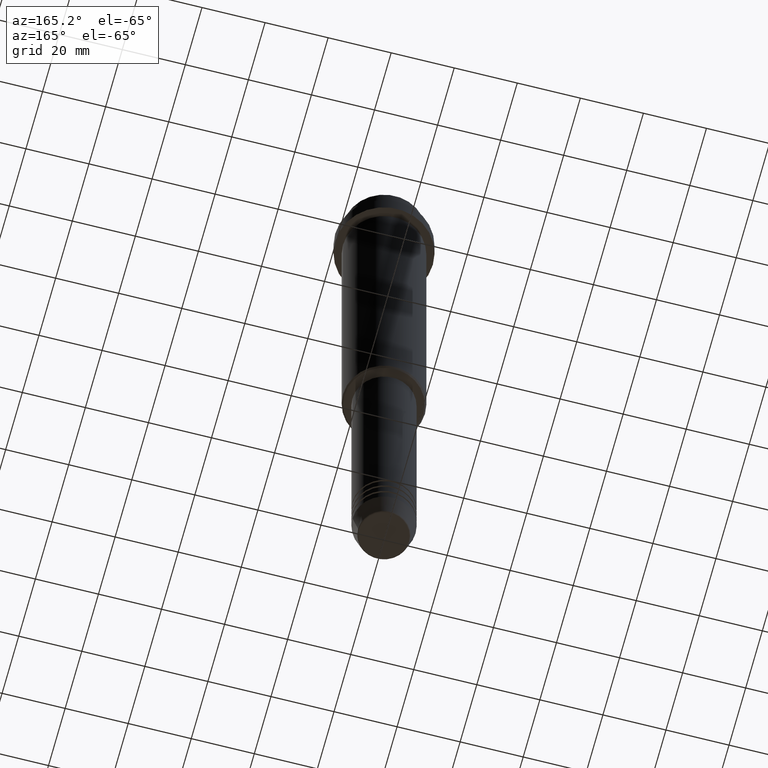
[diagram: clean part render]
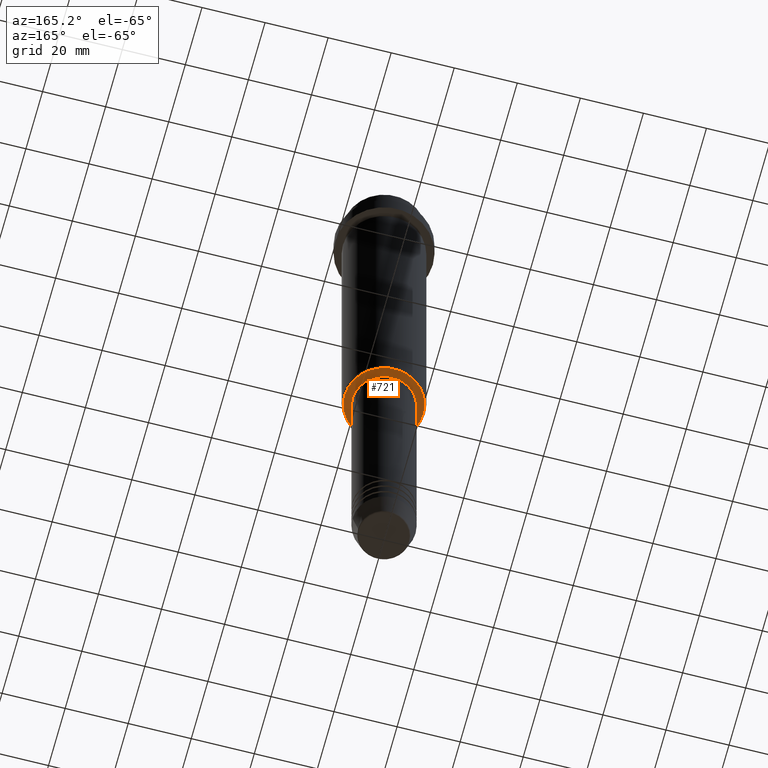
[diagram: same view with one face highlighted and labeled with its STEP entity id]
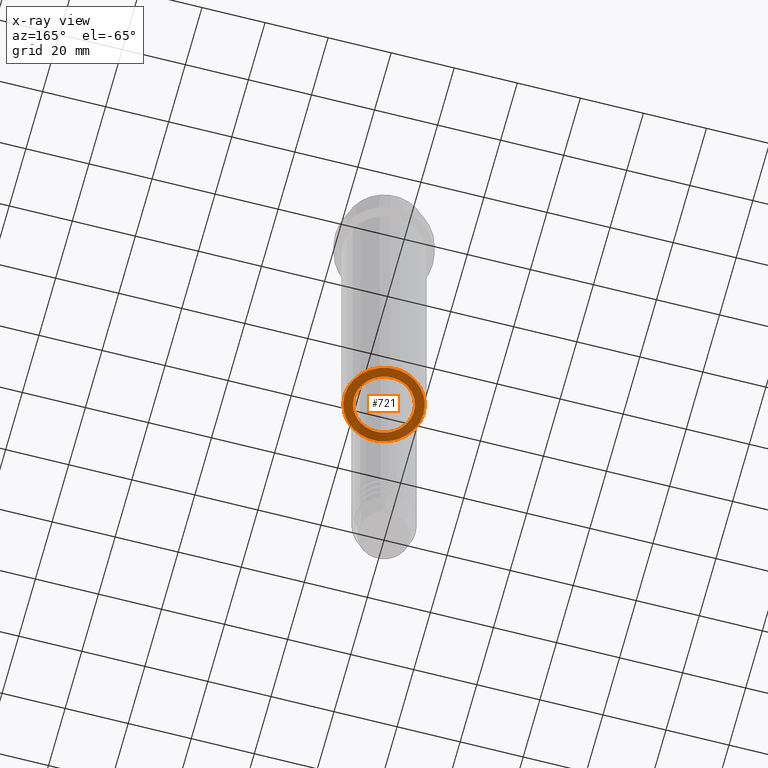
[diagram: x-ray of the same camera — body ghosted, the highlighted face saturated]
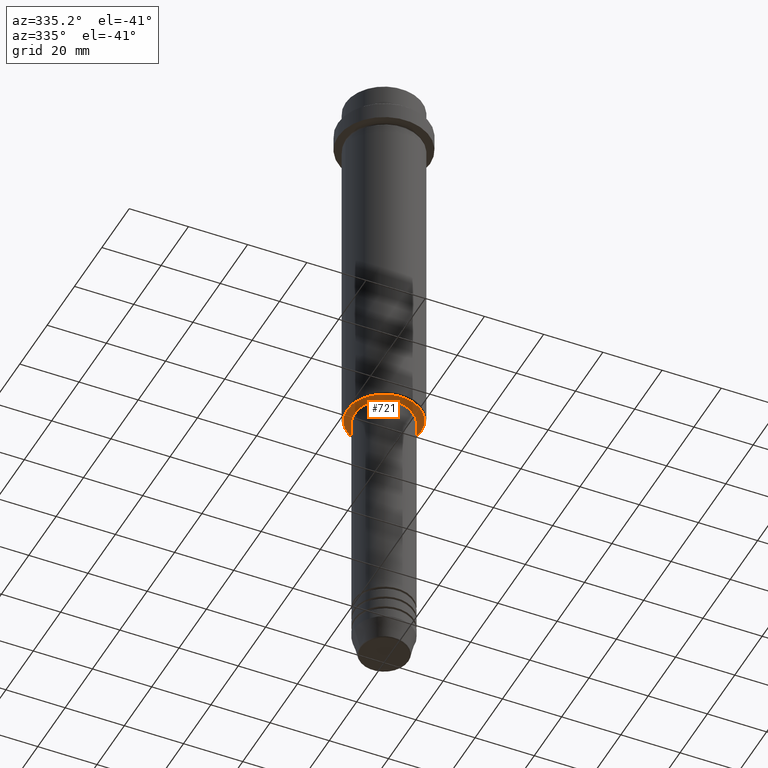
[diagram: same view with one face highlighted and labeled with its STEP entity id]
A machine part, auxiliary view. The second image highlights one B-rep face of the part: STEP entity #721.
The next image is the same camera in x-ray: the body ghosted, the highlighted face saturated — about 31% of this face is hidden behind the body in this view.
A second angle (auxiliary view) of the same face is appended — the face is thin or edge-on in the first view.
In plain terms, the highlighted planar face has unit normal (0, 0, -1).
Its self-contained STEP definition (entity closure, byte-faithful):
#46 = CARTESIAN_POINT ( 'NONE',  ( 0.000000000000000000, 0.000000000000000000, -125.0000000000000000 ) ) ;
#48 = CARTESIAN_POINT ( 'NONE',  ( 9.499999999999996447, 0.000000000000000000, -125.0000000000000000 ) ) ;
#49 = CARTESIAN_POINT ( 'NONE',  ( 0.000000000000000000, 0.000000000000000000, -125.0000000000000000 ) ) ;
#55 = AXIS2_PLACEMENT_3D ( 'NONE', #1308, #560, #892 ) ;
#191 = VERTEX_POINT ( 'NONE', #975 ) ;
#226 = AXIS2_PLACEMENT_3D ( 'NONE', #49, #351, #1037 ) ;
#232 = CIRCLE ( 'NONE', #1361, 12.49999999999995559 ) ;
#238 = FACE_OUTER_BOUND ( 'NONE', #600, .T. ) ;
#256 = EDGE_LOOP ( 'NONE', ( #591, #593 ) ) ;
#264 = CARTESIAN_POINT ( 'NONE',  ( 0.000000000000000000, 0.000000000000000000, -125.0000000000000000 ) ) ;
#291 = ORIENTED_EDGE ( 'NONE', *, *, #470, .T. ) ;
#317 = PLANE ( 'NONE',  #55 ) ;
#331 = CARTESIAN_POINT ( 'NONE',  ( 0.000000000000000000, 0.000000000000000000, -125.0000000000000000 ) ) ;
#333 = DIRECTION ( 'NONE',  ( 0.000000000000000000, 0.000000000000000000, -1.000000000000000000 ) ) ;
#337 = CIRCLE ( 'NONE', #226, 9.499999999999996447 ) ;
#351 = DIRECTION ( 'NONE',  ( -0.000000000000000000, -0.000000000000000000, 1.000000000000000000 ) ) ;
#361 = EDGE_CURVE ( 'NONE', #877, #633, #1405, .T. ) ;
#416 = EDGE_CURVE ( 'NONE', #633, #877, #337, .T. ) ;
#448 = DIRECTION ( 'NONE',  ( -0.000000000000000000, -0.000000000000000000, 1.000000000000000000 ) ) ;
#470 = EDGE_CURVE ( 'NONE', #1353, #191, #1142, .T. ) ;
#528 = AXIS2_PLACEMENT_3D ( 'NONE', #264, #1124, #723 ) ;
#560 = DIRECTION ( 'NONE',  ( 0.000000000000000000, 0.000000000000000000, -1.000000000000000000 ) ) ;
#590 = CARTESIAN_POINT ( 'NONE',  ( -12.49999999999995559, 1.561424668912872745E-15, -125.0000000000000000 ) ) ;
#591 = ORIENTED_EDGE ( 'NONE', *, *, #361, .T. ) ;
#593 = ORIENTED_EDGE ( 'NONE', *, *, #416, .T. ) ;
#600 = EDGE_LOOP ( 'NONE', ( #1157, #291 ) ) ;
#633 = VERTEX_POINT ( 'NONE', #1165 ) ;
#721 = ADVANCED_FACE ( 'NONE', ( #238, #986 ), #317, .T. ) ;
#723 = DIRECTION ( 'NONE',  ( -1.000000000000000000, 0.000000000000000000, 0.000000000000000000 ) ) ;
#782 = DIRECTION ( 'NONE',  ( -1.000000000000000000, 0.000000000000000000, 0.000000000000000000 ) ) ;
#877 = VERTEX_POINT ( 'NONE', #48 ) ;
#892 = DIRECTION ( 'NONE',  ( -1.000000000000000000, 0.000000000000000000, -0.000000000000000000 ) ) ;
#894 = DIRECTION ( 'NONE',  ( 1.000000000000000000, 0.000000000000000000, 0.000000000000000000 ) ) ;
#975 = CARTESIAN_POINT ( 'NONE',  ( 12.49999999999995559, 0.000000000000000000, -125.0000000000000000 ) ) ;
#986 = FACE_BOUND ( 'NONE', #256, .T. ) ;
#1037 = DIRECTION ( 'NONE',  ( 1.000000000000000000, 0.000000000000000000, 0.000000000000000000 ) ) ;
#1124 = DIRECTION ( 'NONE',  ( 0.000000000000000000, 0.000000000000000000, -1.000000000000000000 ) ) ;
#1142 = CIRCLE ( 'NONE', #528, 12.49999999999995559 ) ;
#1157 = ORIENTED_EDGE ( 'NONE', *, *, #1197, .T. ) ;
#1165 = CARTESIAN_POINT ( 'NONE',  ( -9.499999999999996447, 1.163414459189985091E-15, -125.0000000000000000 ) ) ;
#1197 = EDGE_CURVE ( 'NONE', #191, #1353, #232, .T. ) ;
#1233 = AXIS2_PLACEMENT_3D ( 'NONE', #331, #448, #894 ) ;
#1308 = CARTESIAN_POINT ( 'NONE',  ( 0.000000000000000000, 13.00000000000000000, -125.0000000000000000 ) ) ;
#1353 = VERTEX_POINT ( 'NONE', #590 ) ;
#1361 = AXIS2_PLACEMENT_3D ( 'NONE', #46, #333, #782 ) ;
#1405 = CIRCLE ( 'NONE', #1233, 9.499999999999996447 ) ;